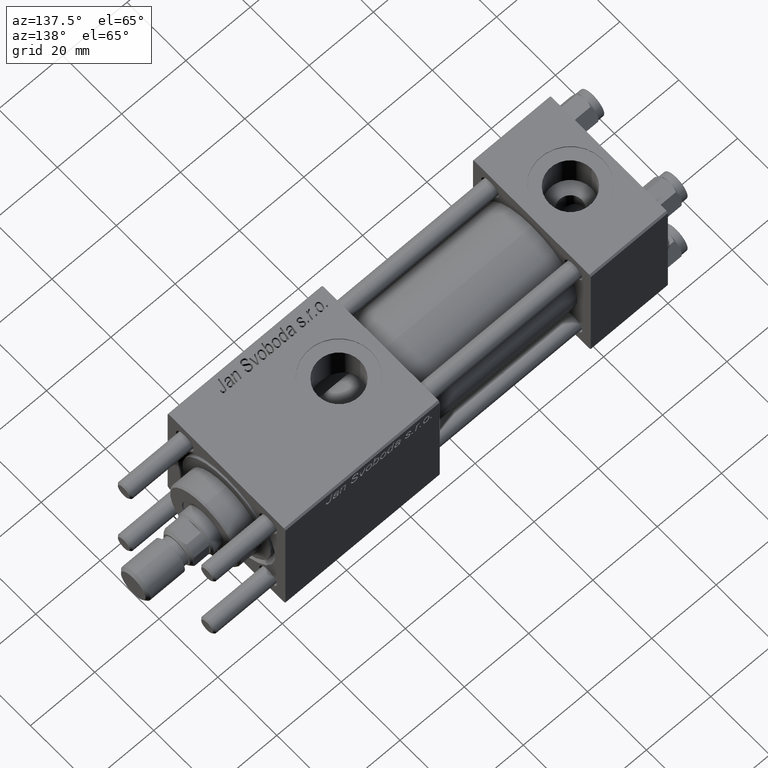
[diagram: clean part render]
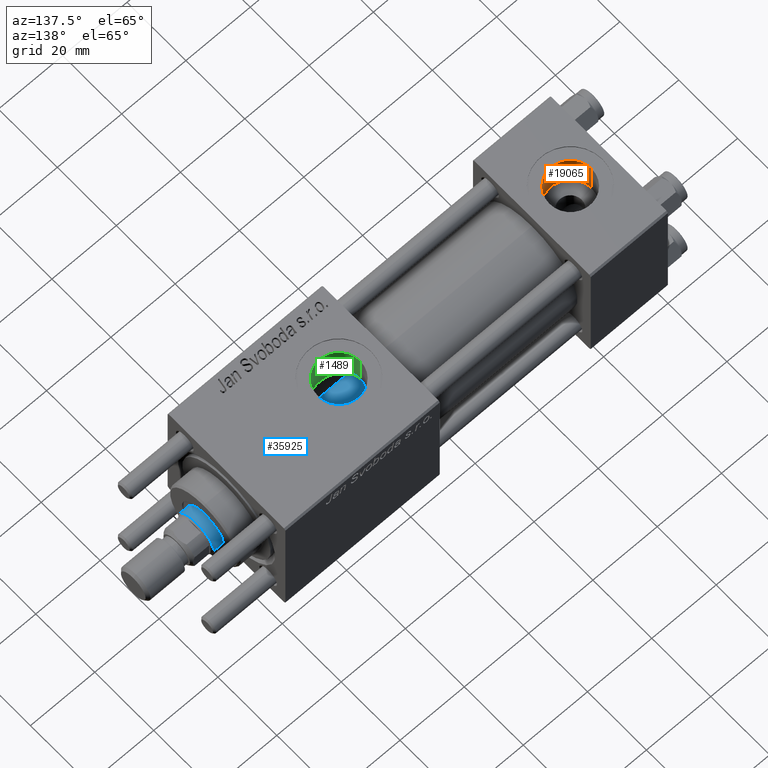
[diagram: same view with three faces highlighted in distinct colors, each labeled with its STEP entity id]
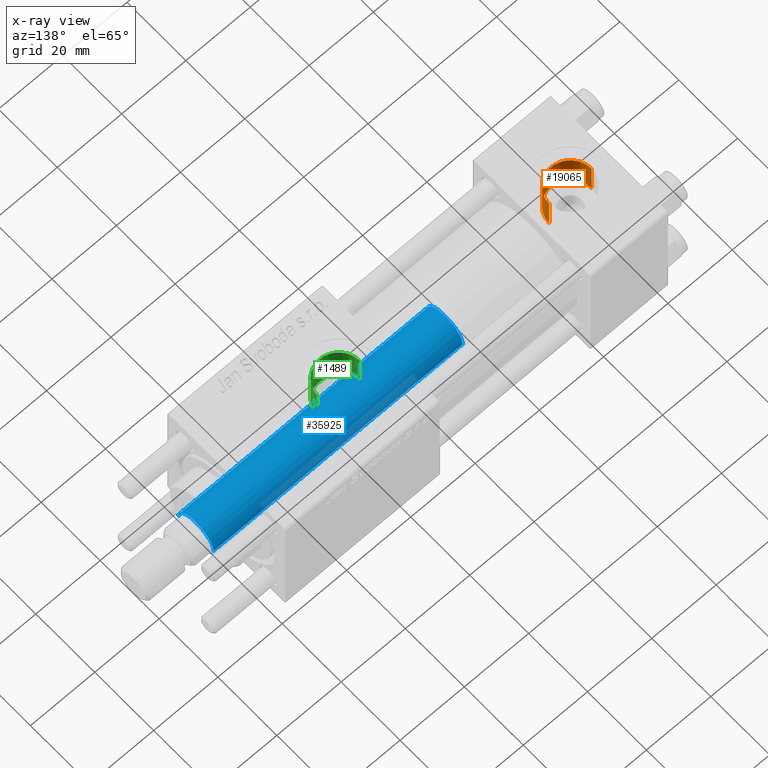
[diagram: x-ray of the same camera — body ghosted, the three highlighted faces saturated]
A machine part, auxiliary view with three faces highlighted in distinct colors.
The next image is the same camera in x-ray (body ghosted, the three faces saturated) — at least one of them is partly hidden behind the body in this view.
Their STEP definitions:

[orange] entity #19065 — the highlighted cylindrical surface (edge-blend (fillet) strip) has radius 6.58 mm, axis along (0, 0, 1).
#2017 = CIRCLE ( 'NONE', #27718, 6.579999999999999183 ) ;
#3060 = DIRECTION ( 'NONE',  ( -0.000000000000000000, -0.000000000000000000, 1.000000000000000000 ) ) ;
#7286 = DIRECTION ( 'NONE',  ( -0.000000000000000000, -0.000000000000000000, 1.000000000000000000 ) ) ;
#11306 = ORIENTED_EDGE ( 'NONE', *, *, #40167, .F. ) ;
#13132 = VERTEX_POINT ( 'NONE', #29036 ) ;
#17100 = DIRECTION ( 'NONE',  ( -0.000000000000000000, -0.000000000000000000, -1.000000000000000000 ) ) ;
#19065 = ADVANCED_FACE ( 'NONE', ( #29648 ), #21869, .F. ) ;
#21256 = VERTEX_POINT ( 'NONE', #37628 ) ;
#21869 = CYLINDRICAL_SURFACE ( 'NONE', #38721, 6.579999999999999183 ) ;
#22316 = VERTEX_POINT ( 'NONE', #31807 ) ;
#23748 = CARTESIAN_POINT ( 'NONE',  ( 18.57999999999999829, 1.540743955509788682E-30, 9.199999999999995737 ) ) ;
#25470 = DIRECTION ( 'NONE',  ( 1.000000000000000000, 0.000000000000000000, 0.000000000000000000 ) ) ;
#25802 = VERTEX_POINT ( 'NONE', #51347 ) ;
#26016 = CARTESIAN_POINT ( 'NONE',  ( 5.420000000000000817, 8.058175938389596335E-16, 9.199999999999995737 ) ) ;
#27425 = EDGE_CURVE ( 'NONE', #21256, #13132, #57565, .T. ) ;
#27718 = AXIS2_PLACEMENT_3D ( 'NONE', #40318, #17100, #35566 ) ;
#29036 = CARTESIAN_POINT ( 'NONE',  ( 5.420000000000000817, 8.058175938389596335E-16, 19.79999999999999716 ) ) ;
#29648 = FACE_OUTER_BOUND ( 'NONE', #45016, .T. ) ;
#29684 = AXIS2_PLACEMENT_3D ( 'NONE', #53214, #51226, #29745 ) ;
#29745 = DIRECTION ( 'NONE',  ( 1.000000000000000000, 0.000000000000000000, 0.000000000000000000 ) ) ;
#31795 = LINE ( 'NONE', #23748, #44903 ) ;
#31807 = CARTESIAN_POINT ( 'NONE',  ( 18.57999999999999829, 1.540743955509788682E-30, 19.79999999999999716 ) ) ;
#35566 = DIRECTION ( 'NONE',  ( 1.000000000000000000, 0.000000000000000000, 0.000000000000000000 ) ) ;
#36836 = DIRECTION ( 'NONE',  ( -0.000000000000000000, -0.000000000000000000, 1.000000000000000000 ) ) ;
#37628 = CARTESIAN_POINT ( 'NONE',  ( 5.420000000000000817, 8.058175938389596335E-16, 9.165987261146492315 ) ) ;
#38096 = EDGE_CURVE ( 'NONE', #13132, #22316, #55336, .T. ) ;
#38721 = AXIS2_PLACEMENT_3D ( 'NONE', #47777, #7286, #25470 ) ;
#40167 = EDGE_CURVE ( 'NONE', #25802, #22316, #31795, .T. ) ;
#40318 = CARTESIAN_POINT ( 'NONE',  ( 12.00000000000000000, 1.540743955509788682E-30, 9.165987261146492315 ) ) ;
#44903 = VECTOR ( 'NONE', #36836, 1000.000000000000000 ) ;
#45016 = EDGE_LOOP ( 'NONE', ( #51161, #45270, #53294, #11306 ) ) ;
#45270 = ORIENTED_EDGE ( 'NONE', *, *, #27425, .T. ) ;
#47777 = CARTESIAN_POINT ( 'NONE',  ( 12.00000000000000000, 1.540743955509788682E-30, 9.199999999999995737 ) ) ;
#48312 = VECTOR ( 'NONE', #3060, 1000.000000000000000 ) ;
#51161 = ORIENTED_EDGE ( 'NONE', *, *, #58870, .T. ) ;
#51226 = DIRECTION ( 'NONE',  ( 0.000000000000000000, 0.000000000000000000, 1.000000000000000000 ) ) ;
#51347 = CARTESIAN_POINT ( 'NONE',  ( 18.57999999999999829, 1.540743955509788682E-30, 9.165987261146492315 ) ) ;
#53214 = CARTESIAN_POINT ( 'NONE',  ( 12.00000000000000000, 1.540743955509788682E-30, 19.79999999999999716 ) ) ;
#53294 = ORIENTED_EDGE ( 'NONE', *, *, #38096, .T. ) ;
#55336 = CIRCLE ( 'NONE', #29684, 6.579999999999999183 ) ;
#57565 = LINE ( 'NONE', #26016, #48312 ) ;
#58870 = EDGE_CURVE ( 'NONE', #25802, #21256, #2017, .T. ) ;

[blue] entity #35925 — the highlighted cylindrical surface (edge-blend (fillet) strip) has radius 6 mm, axis along (-1, 0, 0).
#3367 = DIRECTION ( 'NONE',  ( -0.000000000000000000, -0.000000000000000000, -1.000000000000000000 ) ) ;
#4693 = DIRECTION ( 'NONE',  ( -0.000000000000000000, -0.000000000000000000, -1.000000000000000000 ) ) ;
#4827 = EDGE_CURVE ( 'NONE', #6211, #31435, #14290, .T. ) ;
#6211 = VERTEX_POINT ( 'NONE', #18080 ) ;
#11005 = DIRECTION ( 'NONE',  ( -0.000000000000000000, -0.000000000000000000, -1.000000000000000000 ) ) ;
#11235 = ORIENTED_EDGE ( 'NONE', *, *, #54423, .T. ) ;
#13290 = EDGE_LOOP ( 'NONE', ( #45426, #11235, #56106, #25200 ) ) ;
#14290 = CIRCLE ( 'NONE', #15227, 6.000000000000000888 ) ;
#15227 = AXIS2_PLACEMENT_3D ( 'NONE', #31778, #26741, #18655 ) ;
#15519 = DIRECTION ( 'NONE',  ( 1.000000000000000000, 0.000000000000000000, 0.000000000000000000 ) ) ;
#18080 = CARTESIAN_POINT ( 'NONE',  ( -6.000000000000000888, 0.000000000000000000, 27.00000000000000000 ) ) ;
#18655 = DIRECTION ( 'NONE',  ( 1.000000000000000000, 0.000000000000000000, 0.000000000000000000 ) ) ;
#19557 = VERTEX_POINT ( 'NONE', #27661 ) ;
#19986 = DIRECTION ( 'NONE',  ( 0.000000000000000000, 0.000000000000000000, -1.000000000000000000 ) ) ;
#20056 = AXIS2_PLACEMENT_3D ( 'NONE', #44047, #11005, #34832 ) ;
#20257 = FACE_OUTER_BOUND ( 'NONE', #13290, .T. ) ;
#24460 = CARTESIAN_POINT ( 'NONE',  ( 0.000000000000000000, 0.000000000000000000, 104.5000000000000142 ) ) ;
#25200 = ORIENTED_EDGE ( 'NONE', *, *, #4827, .T. ) ;
#26620 = AXIS2_PLACEMENT_3D ( 'NONE', #24460, #19986, #15519 ) ;
#26741 = DIRECTION ( 'NONE',  ( 0.000000000000000000, 0.000000000000000000, 1.000000000000000000 ) ) ;
#27661 = CARTESIAN_POINT ( 'NONE',  ( -6.000000000000000888, 0.000000000000000000, 104.5000000000000142 ) ) ;
#31435 = VERTEX_POINT ( 'NONE', #36581 ) ;
#31778 = CARTESIAN_POINT ( 'NONE',  ( 0.000000000000000000, 0.000000000000000000, 27.00000000000000000 ) ) ;
#32426 = VECTOR ( 'NONE', #4693, 1000.000000000000000 ) ;
#33075 = CARTESIAN_POINT ( 'NONE',  ( 6.000000000000000888, 7.347880794884120722E-16, 104.5000000000000142 ) ) ;
#34832 = DIRECTION ( 'NONE',  ( -1.000000000000000000, 0.000000000000000000, 0.000000000000000000 ) ) ;
#35121 = CARTESIAN_POINT ( 'NONE',  ( -6.000000000000000888, 0.000000000000000000, 105.0000000000000000 ) ) ;
#35925 = ADVANCED_FACE ( 'NONE', ( #20257 ), #56576, .T. ) ;
#36042 = EDGE_CURVE ( 'NONE', #19557, #6211, #54447, .T. ) ;
#36581 = CARTESIAN_POINT ( 'NONE',  ( 6.000000000000000888, 7.347880794884120722E-16, 27.00000000000000000 ) ) ;
#36807 = VERTEX_POINT ( 'NONE', #33075 ) ;
#41818 = CIRCLE ( 'NONE', #26620, 6.000000000000000888 ) ;
#44047 = CARTESIAN_POINT ( 'NONE',  ( 0.000000000000000000, 0.000000000000000000, 105.0000000000000000 ) ) ;
#45426 = ORIENTED_EDGE ( 'NONE', *, *, #57118, .F. ) ;
#48573 = VECTOR ( 'NONE', #3367, 1000.000000000000000 ) ;
#54283 = LINE ( 'NONE', #58187, #48573 ) ;
#54423 = EDGE_CURVE ( 'NONE', #36807, #19557, #41818, .T. ) ;
#54447 = LINE ( 'NONE', #35121, #32426 ) ;
#56106 = ORIENTED_EDGE ( 'NONE', *, *, #36042, .T. ) ;
#56576 = CYLINDRICAL_SURFACE ( 'NONE', #20056, 6.000000000000000888 ) ;
#57118 = EDGE_CURVE ( 'NONE', #36807, #31435, #54283, .T. ) ;
#58187 = CARTESIAN_POINT ( 'NONE',  ( 6.000000000000000888, 7.347880794884120722E-16, 105.0000000000000000 ) ) ;

[green] entity #1489 — the highlighted cylindrical surface (edge-blend (fillet) strip) has radius 6.58 mm, axis along (0, 0, -1).
#780 = CARTESIAN_POINT ( 'NONE',  ( 84.00000000000000000, -1.734723475976806897E-15, 42.80000000000000426 ) ) ;
#1342 = CARTESIAN_POINT ( 'NONE',  ( 90.58000000000154728, 1.836897619300433381E-15, 15.00000000000000000 ) ) ;
#1489 = ADVANCED_FACE ( 'NONE', ( #55303 ), #32966, .F. ) ;
#1625 = CARTESIAN_POINT ( 'NONE',  ( 90.30000000000001137, -1.899052395280420136, 14.87930105885285670 ) ) ;
#2673 = CARTESIAN_POINT ( 'NONE',  ( 78.46622740148208663, -3.565203004854784474, 9.344512687240586146 ) ) ;
#2967 = CARTESIAN_POINT ( 'NONE',  ( 83.84132420776212768, -6.581215419008478840, 7.529131557805247787 ) ) ;
#5553 = DIRECTION ( 'NONE',  ( 0.000000000000000000, 0.000000000000000000, -1.000000000000000000 ) ) ;
#6277 = ORIENTED_EDGE ( 'NONE', *, *, #24659, .F. ) ;
#6556 = CARTESIAN_POINT ( 'NONE',  ( 89.68316260257665817, -3.338928794743214468, 9.433056230293079381 ) ) ;
#7157 = CARTESIAN_POINT ( 'NONE',  ( 84.65744280686338641, -6.559709605006789346, 7.547889352008899877 ) ) ;
#7443 = CARTESIAN_POINT ( 'NONE',  ( 77.41999999999848114, -0.4081853129699585803, 10.00000000000000711 ) ) ;
#9729 = B_SPLINE_CURVE_WITH_KNOTS ( 'NONE', 3,
 ( #20569, #57189, #52404, #6556, #16089, #42589, #52696, #33955, #11616, #52100, #15501, #21166, #38129, #51805, #56298, #39016, #11015, #24753, #7157, #47936, #2967, #56592, #15790, #39307, #34844, #25339, #57476, #42889, #25056, #43468, #33670, #29206, #48220, #12189, #30386, #47337, #2673, #20270, #47645, #20869, #38418, #16395, #48524, #34564, #7443, #11307 ),
 .UNSPECIFIED., .F., .F.,
 ( 4, 2, 2, 2, 2, 2, 2, 2, 2, 2, 2, 2, 2, 2, 2, 2, 2, 2, 2, 2, 2, 2, 4 ),
 ( 0.000000000000000000, 0.001207791230099372441, 0.002415582460198744882, 0.003623373690298115155, 0.004227269305347786631, 0.004831164920397457672, 0.006038956150496800623, 0.006642851765546489880, 0.007246747380596180003, 0.008454538610695601017, 0.009058434225745329305, 0.009662329840795061062, 0.01026622545584479108, 0.01087012107089451937, 0.01207791230099397942, 0.01328570353109343946, 0.01449349476119290124, 0.01509739037624264514, 0.01570128599129239078, 0.01690907722139185429, 0.01751297283644158778, 0.01811686845149132127, 0.01932465968159079173 ),
 .UNSPECIFIED. ) ;
#11015 = CARTESIAN_POINT ( 'NONE',  ( 85.64143006621837628, -6.375121249720390182, 7.704616833470068649 ) ) ;
#11307 = CARTESIAN_POINT ( 'NONE',  ( 77.41999999999846693, 1.225496641077837722E-15, 9.999999999999998224 ) ) ;
#11616 = CARTESIAN_POINT ( 'NONE',  ( 88.19718467613775204, -5.071121963172631197, 8.619888602053425330 ) ) ;
#11782 = LINE ( 'NONE', #29975, #35029 ) ;
#12189 = CARTESIAN_POINT ( 'NONE',  ( 78.91948560029506154, -4.185857250486422210, 9.083179932574980242 ) ) ;
#12245 = EDGE_CURVE ( 'NONE', #51753, #52797, #21056, .T. ) ;
#12716 = EDGE_LOOP ( 'NONE', ( #6277, #36869, #40035, #13580, #23974, #30385 ) ) ;
#13580 = ORIENTED_EDGE ( 'NONE', *, *, #27983, .F. ) ;
#14278 = VERTEX_POINT ( 'NONE', #58042 ) ;
#14954 = CIRCLE ( 'NONE', #38716, 6.580000000001542837 ) ;
#15501 = CARTESIAN_POINT ( 'NONE',  ( 87.74050804270864035, -5.416766998257490862, 8.406790300727948306 ) ) ;
#15790 = CARTESIAN_POINT ( 'NONE',  ( 83.23563096081821300, -6.538530929802691460, 7.566314066596407706 ) ) ;
#16089 = CARTESIAN_POINT ( 'NONE',  ( 89.47667727346387778, -3.667500690329295931, 9.309199649381490360 ) ) ;
#16395 = CARTESIAN_POINT ( 'NONE',  ( 77.61241581301695192, -1.592248641449762747, 9.874366003595781649 ) ) ;
#17149 = DIRECTION ( 'NONE',  ( -0.000000000000000000, -0.000000000000000000, -1.000000000000000000 ) ) ;
#17295 = CARTESIAN_POINT ( 'NONE',  ( 90.58000000000154728, 1.836897619300433381E-15, 15.00000000000000000 ) ) ;
#19255 = VERTEX_POINT ( 'NONE', #40599 ) ;
#20000 = EDGE_CURVE ( 'NONE', #21976, #19255, #54441, .T. ) ;
#20270 = CARTESIAN_POINT ( 'NONE',  ( 78.16834223545102134, -3.071777053897142729, 9.522948337697433985 ) ) ;
#20569 = CARTESIAN_POINT ( 'NONE',  ( 90.30000000000001137, -1.899052395280420136, 9.818024241158690657 ) ) ;
#20869 = CARTESIAN_POINT ( 'NONE',  ( 77.78468472322818172, -2.169203254887546617, 9.763745855050723677 ) ) ;
#21056 = LINE ( 'NONE', #57368, #42260 ) ;
#21166 = CARTESIAN_POINT ( 'NONE',  ( 87.26053252520590320, -5.728070196491263921, 8.200680661955367157 ) ) ;
#21625 = CARTESIAN_POINT ( 'NONE',  ( 84.00000000000000000, -1.734723475976806897E-15, 19.80000000000000071 ) ) ;
#21976 = VERTEX_POINT ( 'NONE', #17295 ) ;
#23210 = DIRECTION ( 'NONE',  ( -0.000000000000000000, -0.000000000000000000, 1.000000000000000000 ) ) ;
#23749 = DIRECTION ( 'NONE',  ( -1.000000000000000000, 0.000000000000000000, 0.000000000000000000 ) ) ;
#23974 = ORIENTED_EDGE ( 'NONE', *, *, #31995, .T. ) ;
#24293 = CARTESIAN_POINT ( 'NONE',  ( 90.55605924908761040, -0.6456608678150235203, 14.98945420583744870 ) ) ;
#24659 = EDGE_CURVE ( 'NONE', #38722, #51753, #14954, .T. ) ;
#24753 = CARTESIAN_POINT ( 'NONE',  ( 85.05563542025694801, -6.507095227759212008, 7.594134426896898660 ) ) ;
#25056 = CARTESIAN_POINT ( 'NONE',  ( 81.15150766959031614, -5.943877247083126925, 8.044991576418468071 ) ) ;
#25339 = CARTESIAN_POINT ( 'NONE',  ( 82.25327158685063011, -6.347078162380216604, 7.727766182684421281 ) ) ;
#27983 = EDGE_CURVE ( 'NONE', #14278, #19255, #11782, .T. ) ;
#28475 = CARTESIAN_POINT ( 'NONE',  ( 90.39284622331669539, -1.591040247564623700, 14.91861279833453757 ) ) ;
#29206 = CARTESIAN_POINT ( 'NONE',  ( 79.57031396582577543, -4.880372653833860319, 8.732632965334568453 ) ) ;
#29510 = VECTOR ( 'NONE', #34397, 1000.000000000000000 ) ;
#29975 = CARTESIAN_POINT ( 'NONE',  ( 90.30000000000001137, -1.899052395280420136, 42.80000000000000426 ) ) ;
#30274 = DIRECTION ( 'NONE',  ( 1.000000000000000000, 0.000000000000000000, 0.000000000000000000 ) ) ;
#30385 = ORIENTED_EDGE ( 'NONE', *, *, #12245, .F. ) ;
#30386 = CARTESIAN_POINT ( 'NONE',  ( 78.79875737437667738, -4.034886358906389248, 9.151392050136836431 ) ) ;
#31995 = EDGE_CURVE ( 'NONE', #14278, #52797, #9729, .T. ) ;
#32578 = EDGE_CURVE ( 'NONE', #38722, #21976, #56715, .T. ) ;
#32966 = CYLINDRICAL_SURFACE ( 'NONE', #47433, 6.580000000001542837 ) ;
#33670 = CARTESIAN_POINT ( 'NONE',  ( 80.16020215073048405, -5.356874842517142632, 8.448716332623810388 ) ) ;
#33955 = CARTESIAN_POINT ( 'NONE',  ( 88.34134544482054707, -4.948221379670047604, 8.691185487698470880 ) ) ;
#34397 = DIRECTION ( 'NONE',  ( 0.000000000000000000, 0.000000000000000000, -1.000000000000000000 ) ) ;
#34564 = CARTESIAN_POINT ( 'NONE',  ( 77.45763783829498550, -0.8084208477571691587, 9.975121118623741623 ) ) ;
#34844 = CARTESIAN_POINT ( 'NONE',  ( 82.64228046384747017, -6.441510615516904181, 7.649229527461429257 ) ) ;
#35029 = VECTOR ( 'NONE', #23210, 1000.000000000000000 ) ;
#36869 = ORIENTED_EDGE ( 'NONE', *, *, #32578, .T. ) ;
#37975 = CARTESIAN_POINT ( 'NONE',  ( 90.58000000000156149, -0.3230844264541308797, 14.99999999999999822 ) ) ;
#38129 = CARTESIAN_POINT ( 'NONE',  ( 86.92434068310684836, -5.907044672534588869, 8.071096920454994716 ) ) ;
#38418 = CARTESIAN_POINT ( 'NONE',  ( 77.72104259078042787, -1.977670684214428043, 9.804446867313098224 ) ) ;
#38560 = CARTESIAN_POINT ( 'NONE',  ( 90.46247493449395449, -1.278752734038846484, 14.94875937294843737 ) ) ;
#38716 = AXIS2_PLACEMENT_3D ( 'NONE', #21625, #17149, #30274 ) ;
#38722 = VERTEX_POINT ( 'NONE', #48026 ) ;
#39016 = CARTESIAN_POINT ( 'NONE',  ( 85.83530013697877337, -6.321933289868085559, 7.748495657718812879 ) ) ;
#39307 = CARTESIAN_POINT ( 'NONE',  ( 82.83871781191031403, -6.479820246555592966, 7.616654439233103702 ) ) ;
#40035 = ORIENTED_EDGE ( 'NONE', *, *, #20000, .T. ) ;
#40599 = CARTESIAN_POINT ( 'NONE',  ( 90.30000000000001137, -1.899052395280420136, 14.87930105885285670 ) ) ;
#42260 = VECTOR ( 'NONE', #56476, 1000.000000000000000 ) ;
#42421 = CARTESIAN_POINT ( 'NONE',  ( 90.58000000000154728, -9.289058821376597120E-16, 42.80000000000000426 ) ) ;
#42455 = CARTESIAN_POINT ( 'NONE',  ( 77.41999999999846693, 1.225496641077837722E-15, 9.999999999999998224 ) ) ;
#42516 = CARTESIAN_POINT ( 'NONE',  ( 77.41999999999846693, -1.734723475976806897E-15, 19.80000000000000071 ) ) ;
#42589 = CARTESIAN_POINT ( 'NONE',  ( 89.01171256368644435, -4.281038711601321545, 9.043476487246550732 ) ) ;
#42889 = CARTESIAN_POINT ( 'NONE',  ( 81.50365122394816808, -6.100731835174567408, 7.925108619061488113 ) ) ;
#43468 = CARTESIAN_POINT ( 'NONE',  ( 80.48004077057568395, -5.572564248888139282, 8.306509127488531874 ) ) ;
#47337 = CARTESIAN_POINT ( 'NONE',  ( 78.57242859662287060, -3.724876030303978069, 9.281895439158068584 ) ) ;
#47433 = AXIS2_PLACEMENT_3D ( 'NONE', #780, #5553, #23749 ) ;
#47645 = CARTESIAN_POINT ( 'NONE',  ( 77.99714712711040931, -2.723766581249583485, 9.629423614267258458 ) ) ;
#47936 = CARTESIAN_POINT ( 'NONE',  ( 84.04743762832036680, -6.582974628388996940, 7.527585999843090292 ) ) ;
#48026 = CARTESIAN_POINT ( 'NONE',  ( 90.58000000000154728, -9.289058821376599092E-16, 19.80000000000000071 ) ) ;
#48220 = CARTESIAN_POINT ( 'NONE',  ( 79.29730408322323854, -4.618177244596259889, 8.875509752877485781 ) ) ;
#48524 = CARTESIAN_POINT ( 'NONE',  ( 77.56705469300284506, -1.397686090543303283, 9.903818455115036556 ) ) ;
#51753 = VERTEX_POINT ( 'NONE', #42516 ) ;
#51805 = CARTESIAN_POINT ( 'NONE',  ( 86.39211994537743067, -6.132805105780794186, 7.899218132206713427 ) ) ;
#52100 = CARTESIAN_POINT ( 'NONE',  ( 87.89699318866286148, -5.305288046703262594, 8.477775428654018341 ) ) ;
#52404 = CARTESIAN_POINT ( 'NONE',  ( 90.03601729897108896, -2.648259396322893089, 9.649752199410302822 ) ) ;
#52696 = CARTESIAN_POINT ( 'NONE',  ( 88.75695250607545006, -4.561896889324866144, 8.903678834413629062 ) ) ;
#52797 = VERTEX_POINT ( 'NONE', #42455 ) ;
#54441 = B_SPLINE_CURVE_WITH_KNOTS ( 'NONE', 3,
 ( #1342, #37975, #24293, #38560, #28475, #1625 ),
 .UNSPECIFIED., .F., .F.,
 ( 4, 2, 4 ),
 ( 0.001923267627926015643, 0.002881828648815649985, 0.003840389669705283893 ),
 .UNSPECIFIED. ) ;
#55303 = FACE_OUTER_BOUND ( 'NONE', #12716, .T. ) ;
#56298 = CARTESIAN_POINT ( 'NONE',  ( 86.21002104074251804, -6.200884946022790167, 7.845702732414576275 ) ) ;
#56476 = DIRECTION ( 'NONE',  ( 0.000000000000000000, 0.000000000000000000, -1.000000000000000000 ) ) ;
#56592 = CARTESIAN_POINT ( 'NONE',  ( 83.43610688730976221, -6.558932760434257325, 7.548550817887899278 ) ) ;
#56715 = LINE ( 'NONE', #42421, #29510 ) ;
#57189 = CARTESIAN_POINT ( 'NONE',  ( 90.18384735178129574, -2.284382302762963501, 9.743491762341799145 ) ) ;
#57368 = CARTESIAN_POINT ( 'NONE',  ( 77.41999999999846693, -1.734723475976806897E-15, 42.80000000000000426 ) ) ;
#57476 = CARTESIAN_POINT ( 'NONE',  ( 82.06128195139868353, -6.290973204691355569, 7.773687993804112573 ) ) ;
#58042 = CARTESIAN_POINT ( 'NONE',  ( 90.30000000000001137, -1.899052395280420136, 9.818024241158690657 ) ) ;